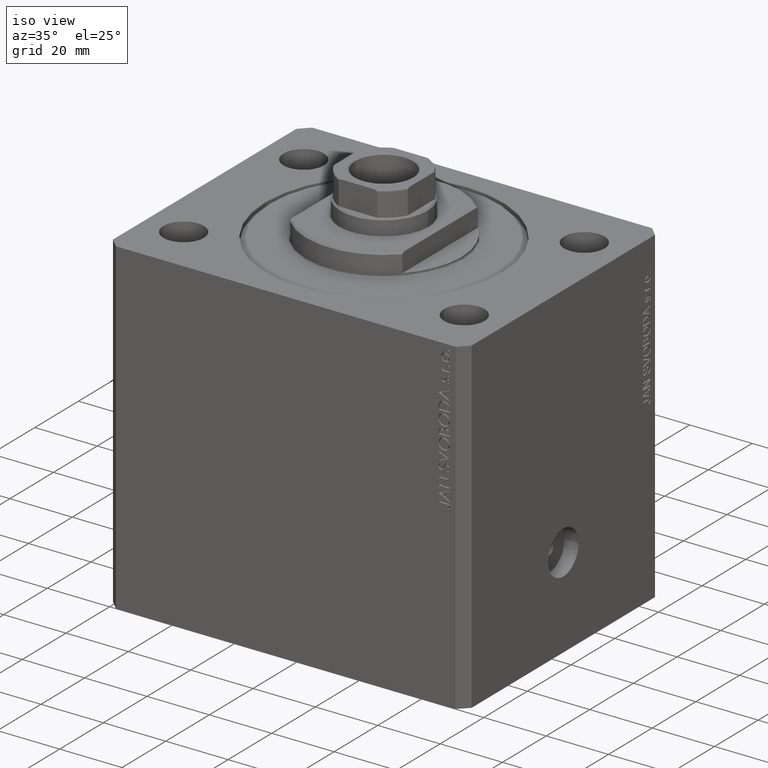
[diagram: clean part render]
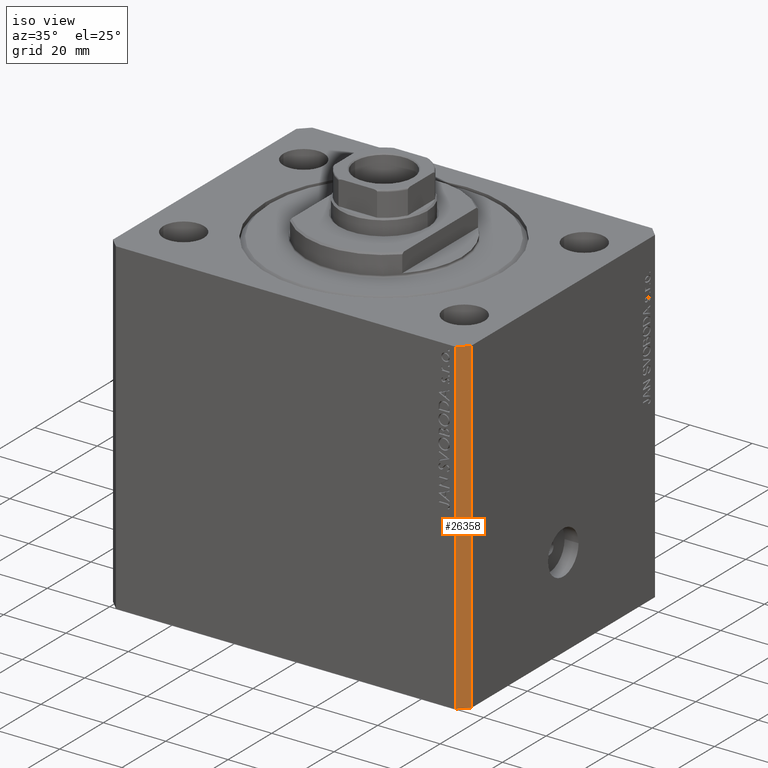
[diagram: same view with one face highlighted and labeled with its STEP entity id]
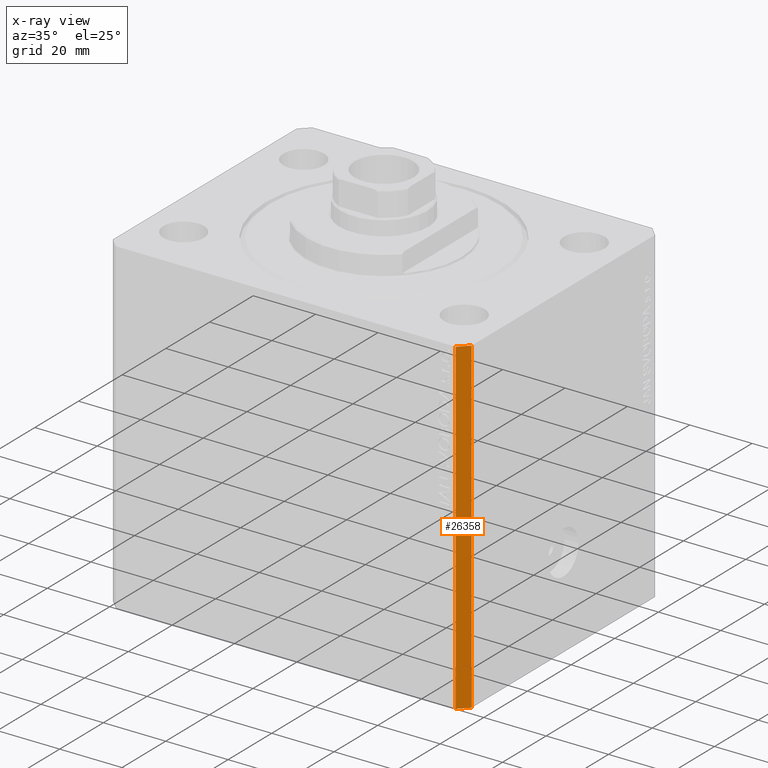
[diagram: x-ray of the same camera — body ghosted, the highlighted face saturated]
A machine part, iso view. The second image highlights one B-rep face of the part: STEP entity #26358.
The next image is the same camera in x-ray: the body ghosted, the highlighted face saturated — about 0% of this face is hidden behind the body in this view.
In plain terms, the highlighted planar face has unit normal (0.7071, -0.7071, 0).
Its self-contained STEP definition (entity closure, byte-faithful):
#908 = CARTESIAN_POINT ( 'NONE',  ( 54.50000000000000711, -44.99999999999998579, 0.000000000000000000 ) ) ;
#957 = FACE_OUTER_BOUND ( 'NONE', #11181, .T. ) ;
#1166 = EDGE_CURVE ( 'NONE', #44382, #1588, #2762, .T. ) ;
#1588 = VERTEX_POINT ( 'NONE', #31126 ) ;
#1871 = ORIENTED_EDGE ( 'NONE', *, *, #1166, .T. ) ;
#2070 = DIRECTION ( 'NONE',  ( 0.000000000000000000, 0.000000000000000000, 1.000000000000000000 ) ) ;
#2762 = LINE ( 'NONE', #43609, #7978 ) ;
#3552 = ORIENTED_EDGE ( 'NONE', *, *, #15785, .F. ) ;
#4347 = DIRECTION ( 'NONE',  ( 0.7071067811865483499, 0.7071067811865466846, 0.000000000000000000 ) ) ;
#4554 = CARTESIAN_POINT ( 'NONE',  ( 54.50000000000000711, -44.99999999999998579, -105.0000000000000000 ) ) ;
#7365 = EDGE_CURVE ( 'NONE', #39879, #25624, #11782, .T. ) ;
#7978 = VECTOR ( 'NONE', #9318, 1000.000000000000000 ) ;
#8212 = CARTESIAN_POINT ( 'NONE',  ( 54.50000000000000711, -44.99999999999998579, -105.0000000000000000 ) ) ;
#8613 = PLANE ( 'NONE',  #13830 ) ;
#8625 = ORIENTED_EDGE ( 'NONE', *, *, #7365, .F. ) ;
#9318 = DIRECTION ( 'NONE',  ( 0.7071067811865483499, 0.7071067811865466846, 0.000000000000000000 ) ) ;
#9898 = EDGE_CURVE ( 'NONE', #1588, #25624, #33645, .T. ) ;
#11181 = EDGE_LOOP ( 'NONE', ( #8625, #3552, #1871, #15776 ) ) ;
#11782 = LINE ( 'NONE', #25564, #26905 ) ;
#12262 = DIRECTION ( 'NONE',  ( 0.000000000000000000, 0.000000000000000000, 1.000000000000000000 ) ) ;
#13830 = AXIS2_PLACEMENT_3D ( 'NONE', #4554, #18982, #39070 ) ;
#15776 = ORIENTED_EDGE ( 'NONE', *, *, #9898, .T. ) ;
#15785 = EDGE_CURVE ( 'NONE', #44382, #39879, #28984, .T. ) ;
#18982 = DIRECTION ( 'NONE',  ( 0.7071067811865466846, -0.7071067811865484609, 0.000000000000000000 ) ) ;
#18987 = CARTESIAN_POINT ( 'NONE',  ( 57.50000000000000711, -41.99999999999998579, -105.0000000000000000 ) ) ;
#24146 = CARTESIAN_POINT ( 'NONE',  ( 54.50000000000000711, -44.99999999999998579, -105.0000000000000000 ) ) ;
#25564 = CARTESIAN_POINT ( 'NONE',  ( 54.50000000000000711, -44.99999999999998579, 0.000000000000000000 ) ) ;
#25624 = VERTEX_POINT ( 'NONE', #37185 ) ;
#26358 = ADVANCED_FACE ( 'NONE', ( #957 ), #8613, .T. ) ;
#26905 = VECTOR ( 'NONE', #4347, 1000.000000000000000 ) ;
#28984 = LINE ( 'NONE', #8212, #37787 ) ;
#31126 = CARTESIAN_POINT ( 'NONE',  ( 57.50000000000000711, -41.99999999999998579, -105.0000000000000000 ) ) ;
#33645 = LINE ( 'NONE', #18987, #34159 ) ;
#34159 = VECTOR ( 'NONE', #2070, 1000.000000000000000 ) ;
#37185 = CARTESIAN_POINT ( 'NONE',  ( 57.50000000000000711, -41.99999999999998579, 0.000000000000000000 ) ) ;
#37787 = VECTOR ( 'NONE', #12262, 1000.000000000000000 ) ;
#39070 = DIRECTION ( 'NONE',  ( 0.7071067811865483499, 0.7071067811865465735, 0.000000000000000000 ) ) ;
#39879 = VERTEX_POINT ( 'NONE', #908 ) ;
#43609 = CARTESIAN_POINT ( 'NONE',  ( 54.50000000000000711, -44.99999999999998579, -105.0000000000000000 ) ) ;
#44382 = VERTEX_POINT ( 'NONE', #24146 ) ;